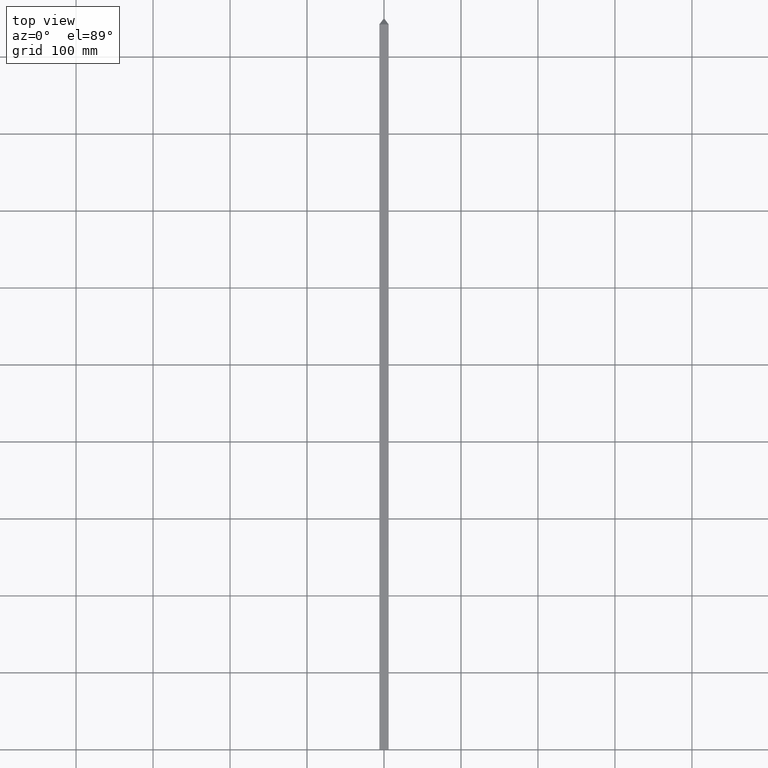
[diagram: clean part render]
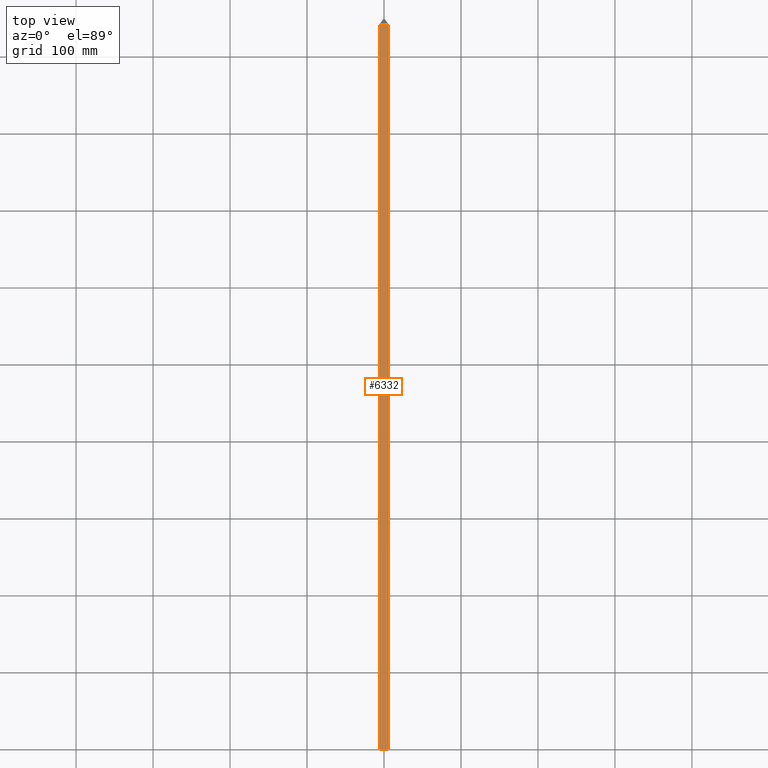
[diagram: same view with one face highlighted and labeled with its STEP entity id]
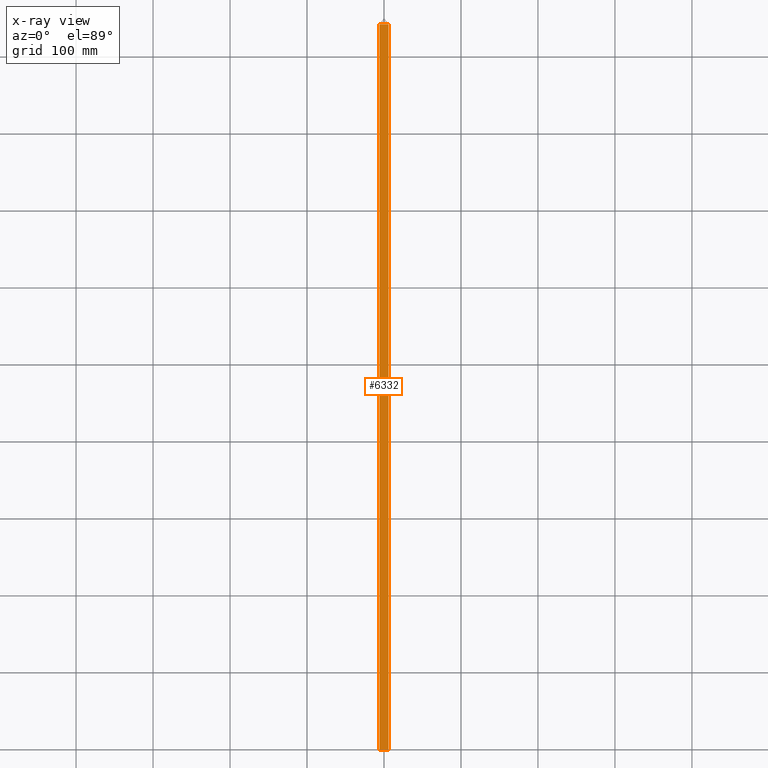
[diagram: x-ray of the same camera — body ghosted, the highlighted face saturated]
A machine part, top view. The second image highlights one B-rep face of the part: STEP entity #6332.
The next image is the same camera in x-ray: the body ghosted, the highlighted face saturated — about 0% of this face is hidden behind the body in this view.
In plain terms, the highlighted planar face has unit normal (0, 0, -1).
Its self-contained STEP definition (entity closure, byte-faithful):
#253 = PLANE ( 'NONE',  #2914 ) ;
#883 = VECTOR ( 'NONE', #4135, 1000.000000000000000 ) ;
#985 = LINE ( 'NONE', #5263, #1551 ) ;
#1551 = VECTOR ( 'NONE', #8637, 1000.000000000000000 ) ;
#1811 = VECTOR ( 'NONE', #7963, 1000.000000000000000 ) ;
#2099 = DIRECTION ( 'NONE',  ( 1.000000000000000000, -0.000000000000000000, -1.445602896647339410E-16 ) ) ;
#2573 = ORIENTED_EDGE ( 'NONE', *, *, #7505, .T. ) ;
#2706 = DIRECTION ( 'NONE',  ( -1.000000000000000000, 0.000000000000000000, -0.000000000000000000 ) ) ;
#2914 = AXIS2_PLACEMENT_3D ( 'NONE', #8754, #10622, #2706 ) ;
#3135 = VERTEX_POINT ( 'NONE', #9192 ) ;
#3720 = CARTESIAN_POINT ( 'NONE',  ( -5.999999999999999112, 0.000000000000000000, 5.999999999999999112 ) ) ;
#3753 = VECTOR ( 'NONE', #2099, 1000.000000000000000 ) ;
#3842 = CARTESIAN_POINT ( 'NONE',  ( -944.0000000000000000, 942.1999999999999318, 6.000000000000135891 ) ) ;
#4135 = DIRECTION ( 'NONE',  ( -0.000000000000000000, -1.000000000000000000, -0.000000000000000000 ) ) ;
#4444 = EDGE_LOOP ( 'NONE', ( #5345, #4579, #4767, #2573 ) ) ;
#4579 = ORIENTED_EDGE ( 'NONE', *, *, #10554, .F. ) ;
#4767 = ORIENTED_EDGE ( 'NONE', *, *, #10418, .T. ) ;
#5263 = CARTESIAN_POINT ( 'NONE',  ( 6.000000000000000888, 950.2000000000000455, 5.999999999999999112 ) ) ;
#5345 = ORIENTED_EDGE ( 'NONE', *, *, #6949, .F. ) ;
#5544 = LINE ( 'NONE', #6678, #883 ) ;
#5748 = VERTEX_POINT ( 'NONE', #3720 ) ;
#5776 = LINE ( 'NONE', #10632, #1811 ) ;
#6332 = ADVANCED_FACE ( 'NONE', ( #8492 ), #253, .F. ) ;
#6678 = CARTESIAN_POINT ( 'NONE',  ( -5.999999999999999112, 950.2000000000000455, 5.999999999999999112 ) ) ;
#6949 = EDGE_CURVE ( 'NONE', #7277, #10699, #985, .T. ) ;
#7277 = VERTEX_POINT ( 'NONE', #10984 ) ;
#7505 = EDGE_CURVE ( 'NONE', #5748, #10699, #5776, .T. ) ;
#7963 = DIRECTION ( 'NONE',  ( 1.000000000000000000, 0.000000000000000000, 0.000000000000000000 ) ) ;
#8017 = LINE ( 'NONE', #3842, #3753 ) ;
#8492 = FACE_OUTER_BOUND ( 'NONE', #4444, .T. ) ;
#8637 = DIRECTION ( 'NONE',  ( -0.000000000000000000, -1.000000000000000000, -0.000000000000000000 ) ) ;
#8754 = CARTESIAN_POINT ( 'NONE',  ( -5.999999999999999112, 950.2000000000000455, 5.999999999999999112 ) ) ;
#8824 = CARTESIAN_POINT ( 'NONE',  ( 6.000000000000000888, 0.000000000000000000, 5.999999999999999112 ) ) ;
#9192 = CARTESIAN_POINT ( 'NONE',  ( -6.000000000000143885, 942.2000000000000455, 5.999999999999999112 ) ) ;
#10418 = EDGE_CURVE ( 'NONE', #3135, #5748, #5544, .T. ) ;
#10554 = EDGE_CURVE ( 'NONE', #3135, #7277, #8017, .T. ) ;
#10622 = DIRECTION ( 'NONE',  ( 0.000000000000000000, 0.000000000000000000, -1.000000000000000000 ) ) ;
#10632 = CARTESIAN_POINT ( 'NONE',  ( -5.999999999999999112, 0.000000000000000000, 5.999999999999999112 ) ) ;
#10699 = VERTEX_POINT ( 'NONE', #8824 ) ;
#10984 = CARTESIAN_POINT ( 'NONE',  ( 6.000000000000000888, 942.1999999999999318, 5.999999999999999112 ) ) ;